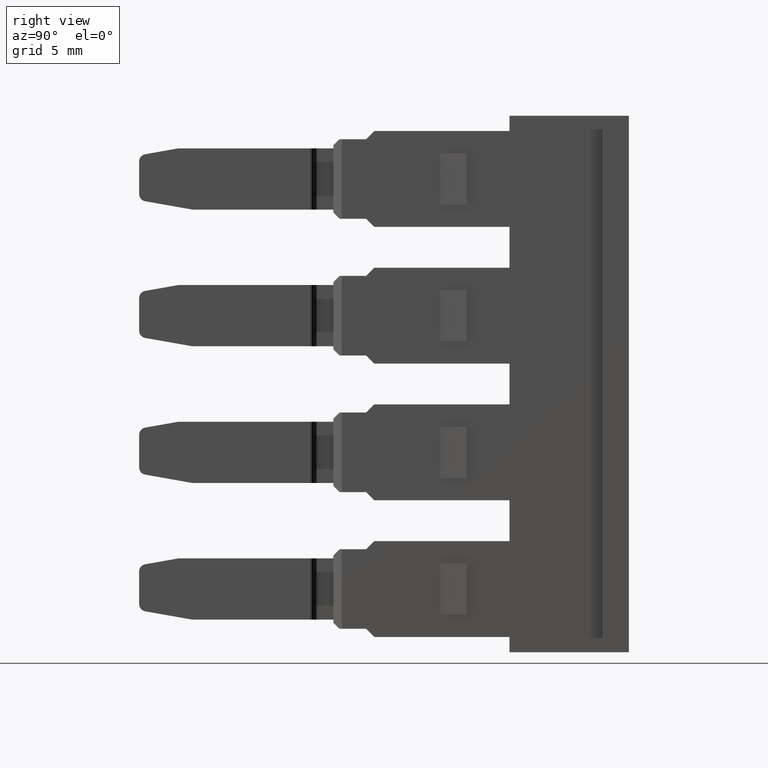
[diagram: clean part render]
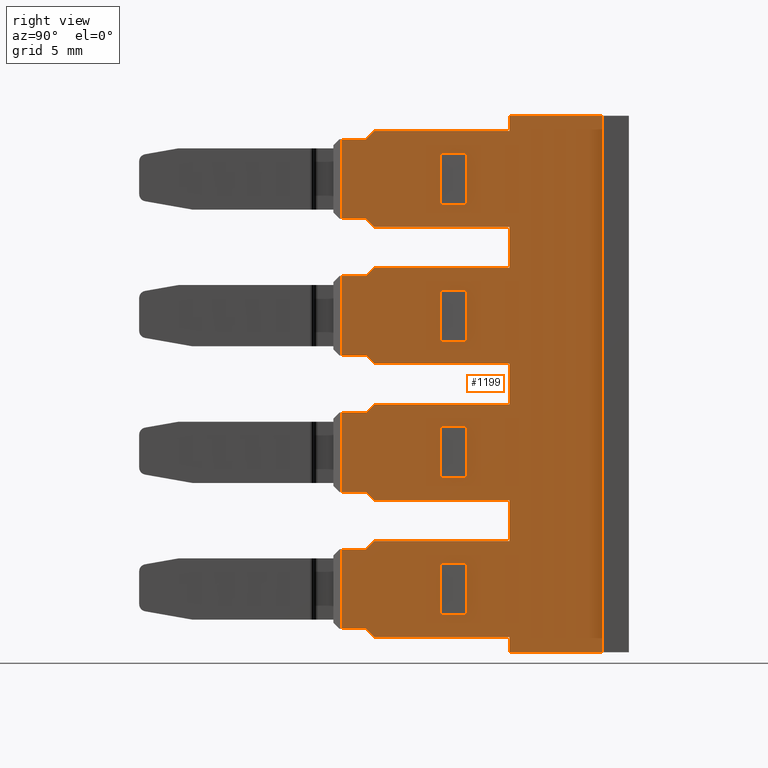
[diagram: same view with one face highlighted and labeled with its STEP entity id]
A machine part, right view. The second image highlights one B-rep face of the part: STEP entity #1199.
In plain terms, the highlighted planar face has unit normal (1, -0, 0).
Its self-contained STEP definition (entity closure, byte-faithful):
#39 = VECTOR ( 'NONE', #3250, 1000.000000000000000 ) ;
#62 = VECTOR ( 'NONE', #2238, 1000.000000000000100 ) ;
#63 = VECTOR ( 'NONE', #2239, 1000.000000000000200 ) ;
#67 = VECTOR ( 'NONE', #2282, 1000.000000000000000 ) ;
#71 = VECTOR ( 'NONE', #2317, 1000.000000000000100 ) ;
#72 = VECTOR ( 'NONE', #2230, 1000.000000000000200 ) ;
#73 = VECTOR ( 'NONE', #2299, 1000.000000000000200 ) ;
#81 = VECTOR ( 'NONE', #2397, 1000.000000000000000 ) ;
#86 = VECTOR ( 'NONE', #2368, 1000.000000000000000 ) ;
#108 = VECTOR ( 'NONE', #2373, 1000.000000000000100 ) ;
#111 = VECTOR ( 'NONE', #2481, 1000.000000000000000 ) ;
#114 = VECTOR ( 'NONE', #2491, 1000.000000000000000 ) ;
#115 = VECTOR ( 'NONE', #2484, 1000.000000000000200 ) ;
#120 = VECTOR ( 'NONE', #2390, 1000.000000000000100 ) ;
#124 = VECTOR ( 'NONE', #2476, 1000.000000000000100 ) ;
#127 = VECTOR ( 'NONE', #2441, 1000.000000000000100 ) ;
#129 = VECTOR ( 'NONE', #2502, 1000.000000000000100 ) ;
#131 = VECTOR ( 'NONE', #2501, 1000.000000000000100 ) ;
#132 = VECTOR ( 'NONE', #2410, 1000.000000000000200 ) ;
#136 = VECTOR ( 'NONE', #2525, 1000.000000000000200 ) ;
#139 = VECTOR ( 'NONE', #2544, 1000.000000000000200 ) ;
#144 = VECTOR ( 'NONE', #2433, 1000.000000000000000 ) ;
#145 = VECTOR ( 'NONE', #2522, 1000.000000000000000 ) ;
#146 = VECTOR ( 'NONE', #2498, 1000.000000000000000 ) ;
#147 = VECTOR ( 'NONE', #2461, 1000.000000000000200 ) ;
#150 = VECTOR ( 'NONE', #2413, 1000.000000000000200 ) ;
#152 = VECTOR ( 'NONE', #2493, 1000.000000000000200 ) ;
#153 = VECTOR ( 'NONE', #2495, 1000.000000000000200 ) ;
#155 = VECTOR ( 'NONE', #2421, 1000.000000000000200 ) ;
#156 = VECTOR ( 'NONE', #2500, 1000.000000000000000 ) ;
#161 = VECTOR ( 'NONE', #2650, 1000.000000000000100 ) ;
#168 = VECTOR ( 'NONE', #2648, 1000.000000000000100 ) ;
#175 = VECTOR ( 'NONE', #2612, 1000.000000000000000 ) ;
#177 = VECTOR ( 'NONE', #2594, 1000.000000000000000 ) ;
#188 = VECTOR ( 'NONE', #2673, 1000.000000000000000 ) ;
#194 = VECTOR ( 'NONE', #2624, 1000.000000000000200 ) ;
#198 = VECTOR ( 'NONE', #2604, 1000.000000000000100 ) ;
#200 = VECTOR ( 'NONE', #2618, 1000.000000000000100 ) ;
#208 = VECTOR ( 'NONE', #2628, 1000.000000000000100 ) ;
#210 = VECTOR ( 'NONE', #2709, 1000.000000000000100 ) ;
#212 = VECTOR ( 'NONE', #2694, 1000.000000000000200 ) ;
#218 = VECTOR ( 'NONE', #2753, 1000.000000000000100 ) ;
#220 = VECTOR ( 'NONE', #2564, 1000.000000000000200 ) ;
#238 = VECTOR ( 'NONE', #2797, 1000.000000000000200 ) ;
#240 = VECTOR ( 'NONE', #2758, 1000.000000000000000 ) ;
#241 = VECTOR ( 'NONE', #2717, 1000.000000000000100 ) ;
#251 = VECTOR ( 'NONE', #2732, 1000.000000000000100 ) ;
#252 = VECTOR ( 'NONE', #2233, 1000.000000000000000 ) ;
#263 = VECTOR ( 'NONE', #2747, 1000.000000000000000 ) ;
#268 = VECTOR ( 'NONE', #2767, 1000.000000000000000 ) ;
#274 = VECTOR ( 'NONE', #2760, 1000.000000000000000 ) ;
#276 = VECTOR ( 'NONE', #2714, 1000.000000000000200 ) ;
#543 = AXIS2_PLACEMENT_3D ( 'NONE', #4434, #4439, #4418 ) ;
#689 = EDGE_CURVE ( 'NONE', #1650, #1649, #3248, .T. ) ;
#713 = EDGE_CURVE ( 'NONE', #1628, #1661, #2257, .T. ) ;
#715 = EDGE_CURVE ( 'NONE', #1680, #1676, #2241, .T. ) ;
#720 = EDGE_CURVE ( 'NONE', #1610, #1668, #2267, .T. ) ;
#734 = EDGE_CURVE ( 'NONE', #1746, #1783, #2285, .T. ) ;
#735 = EDGE_CURVE ( 'NONE', #1692, #1661, #2291, .T. ) ;
#746 = EDGE_CURVE ( 'NONE', #1677, #1617, #2339, .T. ) ;
#754 = EDGE_CURVE ( 'NONE', #1677, #1680, #2400, .T. ) ;
#755 = EDGE_CURVE ( 'NONE', #1610, #1654, #2366, .T. ) ;
#759 = EDGE_CURVE ( 'NONE', #1628, #1668, #2389, .T. ) ;
#765 = EDGE_CURVE ( 'NONE', #1652, #1708, #2362, .T. ) ;
#767 = EDGE_CURVE ( 'NONE', #1692, #1708, #2364, .T. ) ;
#770 = EDGE_CURVE ( 'NONE', #1617, #1676, #2454, .T. ) ;
#774 = EDGE_CURVE ( 'NONE', #1785, #1754, #2392, .T. ) ;
#780 = EDGE_CURVE ( 'NONE', #1732, #1650, #2435, .T. ) ;
#781 = EDGE_CURVE ( 'NONE', #1768, #1784, #2412, .T. ) ;
#783 = EDGE_CURVE ( 'NONE', #1662, #1770, #2427, .T. ) ;
#784 = EDGE_CURVE ( 'NONE', #1740, #1786, #2473, .T. ) ;
#786 = EDGE_CURVE ( 'NONE', #1696, #1710, #2464, .T. ) ;
#787 = EDGE_CURVE ( 'NONE', #1755, #1768, #2428, .T. ) ;
#789 = EDGE_CURVE ( 'NONE', #1696, #1690, #2414, .T. ) ;
#790 = EDGE_CURVE ( 'NONE', #1746, #1725, #2494, .T. ) ;
#791 = EDGE_CURVE ( 'NONE', #1755, #1725, #2482, .T. ) ;
#792 = EDGE_CURVE ( 'NONE', #1698, #1742, #2483, .T. ) ;
#793 = EDGE_CURVE ( 'NONE', #1743, #1649, #2470, .T. ) ;
#796 = EDGE_CURVE ( 'NONE', #1742, #1785, #2488, .T. ) ;
#798 = EDGE_CURVE ( 'NONE', #1652, #1698, #2490, .T. ) ;
#808 = EDGE_CURVE ( 'NONE', #1740, #1767, #2535, .T. ) ;
#809 = EDGE_CURVE ( 'NONE', #1688, #1770, #2514, .T. ) ;
#814 = EDGE_CURVE ( 'NONE', #1784, #1743, #2519, .T. ) ;
#819 = EDGE_CURVE ( 'NONE', #1662, #1690, #2536, .T. ) ;
#821 = EDGE_CURVE ( 'NONE', #1688, #1783, #2558, .T. ) ;
#831 = EDGE_CURVE ( 'NONE', #1786, #1754, #2579, .T. ) ;
#832 = EDGE_CURVE ( 'NONE', #1732, #1767, #2627, .T. ) ;
#837 = EDGE_CURVE ( 'NONE', #1779, #1710, #2607, .T. ) ;
#838 = EDGE_CURVE ( 'NONE', #1724, #1813, #2606, .T. ) ;
#839 = EDGE_CURVE ( 'NONE', #1745, #1765, #2575, .T. ) ;
#850 = EDGE_CURVE ( 'NONE', #1723, #1747, #2641, .T. ) ;
#852 = EDGE_CURVE ( 'NONE', #1745, #1775, #2640, .T. ) ;
#858 = EDGE_CURVE ( 'NONE', #1765, #1749, #2697, .T. ) ;
#864 = EDGE_CURVE ( 'NONE', #1741, #1654, #2707, .T. ) ;
#866 = EDGE_CURVE ( 'NONE', #1744, #1769, #2711, .T. ) ;
#870 = EDGE_CURVE ( 'NONE', #1758, #1764, #2737, .T. ) ;
#871 = EDGE_CURVE ( 'NONE', #1775, #1749, #2678, .T. ) ;
#874 = EDGE_CURVE ( 'NONE', #1741, #1771, #2734, .T. ) ;
#877 = EDGE_CURVE ( 'NONE', #1779, #1769, #2726, .T. ) ;
#878 = EDGE_CURVE ( 'NONE', #1716, #1758, #2740, .T. ) ;
#880 = EDGE_CURVE ( 'NONE', #1716, #1738, #2715, .T. ) ;
#884 = EDGE_CURVE ( 'NONE', #1744, #1771, #2736, .T. ) ;
#885 = EDGE_CURVE ( 'NONE', #1723, #1724, #2793, .T. ) ;
#892 = EDGE_CURVE ( 'NONE', #1738, #1764, #2774, .T. ) ;
#898 = EDGE_CURVE ( 'NONE', #1747, #1813, #2769, .T. ) ;
#1199 = ADVANCED_FACE ( 'NONE', ( #4402, #4410, #4400, #4393, #4427 ), #4403, .T. ) ;
#1514 = ORIENTED_EDGE ( 'NONE', *, *, #808, .F. ) ;
#1515 = ORIENTED_EDGE ( 'NONE', *, *, #814, .T. ) ;
#1516 = ORIENTED_EDGE ( 'NONE', *, *, #791, .F. ) ;
#1539 = ORIENTED_EDGE ( 'NONE', *, *, #781, .T. ) ;
#1547 = ORIENTED_EDGE ( 'NONE', *, *, #798, .F. ) ;
#1551 = ORIENTED_EDGE ( 'NONE', *, *, #792, .F. ) ;
#1558 = ORIENTED_EDGE ( 'NONE', *, *, #689, .F. ) ;
#1563 = ORIENTED_EDGE ( 'NONE', *, *, #789, .T. ) ;
#1566 = ORIENTED_EDGE ( 'NONE', *, *, #793, .T. ) ;
#1567 = ORIENTED_EDGE ( 'NONE', *, *, #734, .F. ) ;
#1572 = ORIENTED_EDGE ( 'NONE', *, *, #765, .T. ) ;
#1573 = ORIENTED_EDGE ( 'NONE', *, *, #767, .F. ) ;
#1578 = ORIENTED_EDGE ( 'NONE', *, *, #735, .T. ) ;
#1582 = ORIENTED_EDGE ( 'NONE', *, *, #784, .T. ) ;
#1584 = ORIENTED_EDGE ( 'NONE', *, *, #796, .F. ) ;
#1585 = ORIENTED_EDGE ( 'NONE', *, *, #786, .F. ) ;
#1586 = ORIENTED_EDGE ( 'NONE', *, *, #774, .F. ) ;
#1587 = ORIENTED_EDGE ( 'NONE', *, *, #832, .T. ) ;
#1590 = ORIENTED_EDGE ( 'NONE', *, *, #790, .T. ) ;
#1591 = ORIENTED_EDGE ( 'NONE', *, *, #713, .F. ) ;
#1593 = ORIENTED_EDGE ( 'NONE', *, *, #780, .F. ) ;
#1598 = ORIENTED_EDGE ( 'NONE', *, *, #821, .T. ) ;
#1600 = ORIENTED_EDGE ( 'NONE', *, *, #831, .T. ) ;
#1602 = ORIENTED_EDGE ( 'NONE', *, *, #809, .F. ) ;
#1607 = ORIENTED_EDGE ( 'NONE', *, *, #819, .F. ) ;
#1610 = VERTEX_POINT ( 'NONE', #4685 ) ;
#1617 = VERTEX_POINT ( 'NONE', #4699 ) ;
#1628 = VERTEX_POINT ( 'NONE', #4682 ) ;
#1649 = VERTEX_POINT ( 'NONE', #4753 ) ;
#1650 = VERTEX_POINT ( 'NONE', #4711 ) ;
#1652 = VERTEX_POINT ( 'NONE', #4707 ) ;
#1654 = VERTEX_POINT ( 'NONE', #4734 ) ;
#1661 = VERTEX_POINT ( 'NONE', #4732 ) ;
#1662 = VERTEX_POINT ( 'NONE', #4767 ) ;
#1668 = VERTEX_POINT ( 'NONE', #4726 ) ;
#1676 = VERTEX_POINT ( 'NONE', #4750 ) ;
#1677 = VERTEX_POINT ( 'NONE', #4769 ) ;
#1680 = VERTEX_POINT ( 'NONE', #4748 ) ;
#1688 = VERTEX_POINT ( 'NONE', #4728 ) ;
#1690 = VERTEX_POINT ( 'NONE', #4752 ) ;
#1692 = VERTEX_POINT ( 'NONE', #4744 ) ;
#1696 = VERTEX_POINT ( 'NONE', #4719 ) ;
#1698 = VERTEX_POINT ( 'NONE', #4731 ) ;
#1708 = VERTEX_POINT ( 'NONE', #4809 ) ;
#1710 = VERTEX_POINT ( 'NONE', #4826 ) ;
#1716 = VERTEX_POINT ( 'NONE', #4770 ) ;
#1723 = VERTEX_POINT ( 'NONE', #4804 ) ;
#1724 = VERTEX_POINT ( 'NONE', #4811 ) ;
#1725 = VERTEX_POINT ( 'NONE', #4771 ) ;
#1732 = VERTEX_POINT ( 'NONE', #4832 ) ;
#1738 = VERTEX_POINT ( 'NONE', #4819 ) ;
#1740 = VERTEX_POINT ( 'NONE', #4785 ) ;
#1741 = VERTEX_POINT ( 'NONE', #4773 ) ;
#1742 = VERTEX_POINT ( 'NONE', #4782 ) ;
#1743 = VERTEX_POINT ( 'NONE', #4806 ) ;
#1744 = VERTEX_POINT ( 'NONE', #4817 ) ;
#1745 = VERTEX_POINT ( 'NONE', #4776 ) ;
#1746 = VERTEX_POINT ( 'NONE', #4821 ) ;
#1747 = VERTEX_POINT ( 'NONE', #4772 ) ;
#1749 = VERTEX_POINT ( 'NONE', #4798 ) ;
#1754 = VERTEX_POINT ( 'NONE', #4797 ) ;
#1755 = VERTEX_POINT ( 'NONE', #4813 ) ;
#1758 = VERTEX_POINT ( 'NONE', #4807 ) ;
#1764 = VERTEX_POINT ( 'NONE', #4783 ) ;
#1765 = VERTEX_POINT ( 'NONE', #4827 ) ;
#1767 = VERTEX_POINT ( 'NONE', #4857 ) ;
#1768 = VERTEX_POINT ( 'NONE', #4851 ) ;
#1769 = VERTEX_POINT ( 'NONE', #4882 ) ;
#1770 = VERTEX_POINT ( 'NONE', #4873 ) ;
#1771 = VERTEX_POINT ( 'NONE', #4836 ) ;
#1775 = VERTEX_POINT ( 'NONE', #4862 ) ;
#1779 = VERTEX_POINT ( 'NONE', #4845 ) ;
#1783 = VERTEX_POINT ( 'NONE', #4834 ) ;
#1784 = VERTEX_POINT ( 'NONE', #4861 ) ;
#1785 = VERTEX_POINT ( 'NONE', #4848 ) ;
#1786 = VERTEX_POINT ( 'NONE', #4887 ) ;
#1813 = VERTEX_POINT ( 'NONE', #4897 ) ;
#1914 = EDGE_LOOP ( 'NONE', ( #2812, #2816, #2856, #2805 ) ) ;
#1925 = EDGE_LOOP ( 'NONE', ( #1585, #1563, #1607, #2850, #1602, #1598, #1567, #1590, #1516, #2814, #1539, #1515, #1566, #1558, #1593, #1587, #1514, #1582, #1600, #1586, #1584, #1551, #1547, #1572, #1573, #1578, #1591, #2859, #2827, #2810, #2824, #2841, #2835, #2855, #2826, #2832 ) ) ;
#1939 = EDGE_LOOP ( 'NONE', ( #2811, #2813, #2853, #2844 ) ) ;
#1961 = EDGE_LOOP ( 'NONE', ( #2804, #2799, #2840, #2822 ) ) ;
#2010 = EDGE_LOOP ( 'NONE', ( #2828, #2829, #2836, #2837 ) ) ;
#2230 = DIRECTION ( 'NONE',  ( -9.483855583750710300E-006, -0.9999999999550282000, -1.120667772762481900E-016 ) ) ;
#2232 = CARTESIAN_POINT ( 'NONE',  ( 1393.382319421650900, 1065.079307296093500, -1.950000000030796700 ) ) ;
#2233 = DIRECTION ( 'NONE',  ( 0.0000000000000000000, 0.0000000000000000000, 1.000000000000000000 ) ) ;
#2238 = DIRECTION ( 'NONE',  ( -9.483855581204527600E-006, -0.9999999999550282000, -0.0000000000000000000 ) ) ;
#2239 = DIRECTION ( 'NONE',  ( -9.483855583750710300E-006, -0.9999999999550282000, 2.389095031153598600E-030 ) ) ;
#2241 = LINE ( 'NONE', #2265, #62 ) ;
#2248 = CARTESIAN_POINT ( 'NONE',  ( 1393.382396617263300, 1073.218993924947400, -2.349999999997611800 ) ) ;
#2257 = LINE ( 'NONE', #2232, #63 ) ;
#2265 = CARTESIAN_POINT ( 'NONE',  ( 1393.382352594128200, 1068.707091196434000, 1.249999999999762600 ) ) ;
#2267 = LINE ( 'NONE', #2248, #72 ) ;
#2282 = DIRECTION ( 'NONE',  ( 1.714438068883926900E-015, -4.605397349032980000E-014, -1.000000000000000000 ) ) ;
#2285 = LINE ( 'NONE', #2288, #73 ) ;
#2288 = CARTESIAN_POINT ( 'NONE',  ( 1393.382319421650900, 1065.079307296089400, -15.35000000003079800 ) ) ;
#2291 = LINE ( 'NONE', #2304, #67 ) ;
#2299 = DIRECTION ( 'NONE',  ( -9.483855583750710300E-006, -0.9999999999550282000, 2.389095031153598600E-030 ) ) ;
#2304 = CARTESIAN_POINT ( 'NONE',  ( 1393.382308020079100, 1063.877098784087400, -50.53084736897763200 ) ) ;
#2317 = DIRECTION ( 'NONE',  ( -9.483855581204527600E-006, -0.9999999999550282000, -0.0000000000000000000 ) ) ;
#2339 = LINE ( 'NONE', #2357, #71 ) ;
#2357 = CARTESIAN_POINT ( 'NONE',  ( 1393.382352594128200, 1068.707091196434000, -1.250000000000237800 ) ) ;
#2362 = LINE ( 'NONE', #2379, #120 ) ;
#2364 = LINE ( 'NONE', #2418, #132 ) ;
#2366 = LINE ( 'NONE', #2375, #86 ) ;
#2368 = DIRECTION ( 'NONE',  ( 1.714874837963338900E-015, -1.626362524897224600E-020, -1.000000000000000000 ) ) ;
#2373 = DIRECTION ( 'NONE',  ( 6.706098596277136100E-006, 0.7071067811548011900, -0.7071067811864939500 ) ) ;
#2375 = CARTESIAN_POINT ( 'NONE',  ( 1393.382384858510700, 1072.109123440697900, -4.149999999864966100 ) ) ;
#2379 = CARTESIAN_POINT ( 'NONE',  ( 1393.382113227151000, 1043.337675100521200, -19.79142368448424000 ) ) ;
#2386 = CARTESIAN_POINT ( 'NONE',  ( 1393.382592454409900, 1093.868522467229200, -30.73942368448381000 ) ) ;
#2389 = LINE ( 'NONE', #2386, #108 ) ;
#2390 = DIRECTION ( 'NONE',  ( -6.706098593851936800E-006, -0.7071067811548011900, -0.7071067811864939500 ) ) ;
#2392 = LINE ( 'NONE', #2439, #127 ) ;
#2397 = DIRECTION ( 'NONE',  ( 0.0000000000000000000, 0.0000000000000000000, 1.000000000000000000 ) ) ;
#2400 = LINE ( 'NONE', #2404, #81 ) ;
#2404 = CARTESIAN_POINT ( 'NONE',  ( 1393.382364923140600, 1070.007091196375300, -1.250000000000237800 ) ) ;
#2410 = DIRECTION ( 'NONE',  ( 9.483855583750710300E-006, 0.9999999999550282000, -2.389095031153598600E-030 ) ) ;
#2411 = CARTESIAN_POINT ( 'NONE',  ( 1393.382396617263300, 1073.348993924947500, 9.050000000002393500 ) ) ;
#2412 = LINE ( 'NONE', #2417, #150 ) ;
#2413 = DIRECTION ( 'NONE',  ( 9.483855583750710300E-006, 0.9999999999550282000, -3.130996347652481000E-030 ) ) ;
#2414 = LINE ( 'NONE', #2467, #114 ) ;
#2417 = CARTESIAN_POINT ( 'NONE',  ( 1393.382438900884600, 1077.807478227273400, -16.49999999994241800 ) ) ;
#2418 = CARTESIAN_POINT ( 'NONE',  ( 1393.382319421650900, 1065.079307296093500, 1.950000000035573300 ) ) ;
#2421 = DIRECTION ( 'NONE',  ( 9.483855583750710300E-006, 0.9999999999550282000, 2.241335545524812400E-016 ) ) ;
#2422 = CARTESIAN_POINT ( 'NONE',  ( 1393.382113227151000, 1043.337675100517100, -33.19142368448423500 ) ) ;
#2427 = LINE ( 'NONE', #2422, #131 ) ;
#2428 = LINE ( 'NONE', #2497, #111 ) ;
#2431 = CARTESIAN_POINT ( 'NONE',  ( 1393.382352594128200, 1068.707091196434000, -1.250000000000237800 ) ) ;
#2433 = DIRECTION ( 'NONE',  ( 0.0000000000000000000, 0.0000000000000000000, 1.000000000000000000 ) ) ;
#2435 = LINE ( 'NONE', #2411, #155 ) ;
#2439 = CARTESIAN_POINT ( 'NONE',  ( 1393.382319419673200, 1065.079098784066700, 4.749999999969200600 ) ) ;
#2441 = DIRECTION ( 'NONE',  ( -6.706098596277136100E-006, -0.7071067811548011900, 0.7071067811864939500 ) ) ;
#2454 = LINE ( 'NONE', #2431, #144 ) ;
#2455 = CARTESIAN_POINT ( 'NONE',  ( 1393.382396617263300, 1073.348993924947500, 4.350000000002388800 ) ) ;
#2458 = CARTESIAN_POINT ( 'NONE',  ( 1393.382384858510700, 1072.109123440683800, 9.800000000002386400 ) ) ;
#2460 = CARTESIAN_POINT ( 'NONE',  ( 1393.382396617263300, 1073.218993924947400, 2.350000000002388800 ) ) ;
#2461 = DIRECTION ( 'NONE',  ( 9.483855583750710300E-006, 0.9999999999550282000, 2.241335545524812400E-016 ) ) ;
#2464 = LINE ( 'NONE', #2469, #152 ) ;
#2467 = CARTESIAN_POINT ( 'NONE',  ( 1393.382384858510700, 1072.109123440695600, -10.84999999986496800 ) ) ;
#2468 = CARTESIAN_POINT ( 'NONE',  ( 1393.382308020079100, 1063.877098784086900, -50.53084736897763200 ) ) ;
#2469 = CARTESIAN_POINT ( 'NONE',  ( 1393.382396617263300, 1073.218993924945200, -9.049999999997611500 ) ) ;
#2470 = LINE ( 'NONE', #2458, #124 ) ;
#2473 = LINE ( 'NONE', #2468, #156 ) ;
#2474 = CARTESIAN_POINT ( 'NONE',  ( 1393.382592454409900, 1093.868522467225100, -44.13942368448381600 ) ) ;
#2475 = CARTESIAN_POINT ( 'NONE',  ( 1393.382396617263300, 1073.218993924943300, -15.74999999999761300 ) ) ;
#2476 = DIRECTION ( 'NONE',  ( -9.483855611108565000E-006, -0.9999999999550282000, -5.225314860975799700E-029 ) ) ;
#2481 = DIRECTION ( 'NONE',  ( 1.714874837963338900E-015, -1.626362524897224600E-020, -1.000000000000000000 ) ) ;
#2482 = LINE ( 'NONE', #2475, #115 ) ;
#2483 = LINE ( 'NONE', #2485, #146 ) ;
#2484 = DIRECTION ( 'NONE',  ( -9.483855583750710300E-006, -0.9999999999550282000, -1.120667772762481900E-016 ) ) ;
#2485 = CARTESIAN_POINT ( 'NONE',  ( 1393.382384858510700, 1072.109123440686300, 5.351675905081232400 ) ) ;
#2488 = LINE ( 'NONE', #2455, #153 ) ;
#2490 = LINE ( 'NONE', #2460, #147 ) ;
#2491 = DIRECTION ( 'NONE',  ( 1.714874837963338900E-015, -1.626362524897224600E-020, -1.000000000000000000 ) ) ;
#2493 = DIRECTION ( 'NONE',  ( -9.483855583750710300E-006, -0.9999999999550282000, -1.120667772762481900E-016 ) ) ;
#2494 = LINE ( 'NONE', #2474, #129 ) ;
#2495 = DIRECTION ( 'NONE',  ( -9.483855583750710300E-006, -0.9999999999550282000, -1.120667772762481900E-016 ) ) ;
#2497 = CARTESIAN_POINT ( 'NONE',  ( 1393.382384858510700, 1072.109123440693600, -17.54999999986496600 ) ) ;
#2498 = DIRECTION ( 'NONE',  ( -1.714375413515915900E-015, 5.266050260173267100E-014, 1.000000000000000000 ) ) ;
#2500 = DIRECTION ( 'NONE',  ( 1.714438068883926900E-015, -4.605397349032980000E-014, -1.000000000000000000 ) ) ;
#2501 = DIRECTION ( 'NONE',  ( -6.706098593851936800E-006, -0.7071067811548011900, -0.7071067811864939500 ) ) ;
#2502 = DIRECTION ( 'NONE',  ( 6.706098596277136100E-006, 0.7071067811548011900, -0.7071067811864939500 ) ) ;
#2514 = LINE ( 'NONE', #2532, #139 ) ;
#2519 = LINE ( 'NONE', #2521, #145 ) ;
#2521 = CARTESIAN_POINT ( 'NONE',  ( 1393.382427990852200, 1076.657098783514800, -50.53084736897823600 ) ) ;
#2522 = DIRECTION ( 'NONE',  ( -1.714375413516005400E-015, 5.266050259226226300E-014, 1.000000000000000000 ) ) ;
#2525 = DIRECTION ( 'NONE',  ( 9.483855583750710300E-006, 0.9999999999550282000, -2.389095031153598600E-030 ) ) ;
#2532 = CARTESIAN_POINT ( 'NONE',  ( 1393.382319421650900, 1065.079307296089400, -11.44999999996442800 ) ) ;
#2535 = LINE ( 'NONE', #2541, #136 ) ;
#2536 = LINE ( 'NONE', #2586, #220 ) ;
#2541 = CARTESIAN_POINT ( 'NONE',  ( 1393.382319421650900, 1065.079307296093500, 8.650000000035571900 ) ) ;
#2544 = DIRECTION ( 'NONE',  ( 9.483855583750710300E-006, 0.9999999999550282000, -2.389095031153598600E-030 ) ) ;
#2558 = LINE ( 'NONE', #2592, #177 ) ;
#2561 = CARTESIAN_POINT ( 'NONE',  ( 1393.382404755406000, 1074.077098783628100, 4.749999999969209500 ) ) ;
#2564 = DIRECTION ( 'NONE',  ( 9.483855583750710300E-006, 0.9999999999550282000, 2.241335545524812400E-016 ) ) ;
#2575 = LINE ( 'NONE', #2609, #175 ) ;
#2579 = LINE ( 'NONE', #2561, #194 ) ;
#2586 = CARTESIAN_POINT ( 'NONE',  ( 1393.382396617263300, 1073.218993924943300, -11.04999999999761200 ) ) ;
#2592 = CARTESIAN_POINT ( 'NONE',  ( 1393.382308020079100, 1063.877098784083000, -63.93084736897762400 ) ) ;
#2594 = DIRECTION ( 'NONE',  ( 1.714438068883926900E-015, -4.605397349032980000E-014, -1.000000000000000000 ) ) ;
#2600 = CARTESIAN_POINT ( 'NONE',  ( 1393.382081456234800, 1039.987675100672000, -16.44142368448373800 ) ) ;
#2603 = CARTESIAN_POINT ( 'NONE',  ( 1393.382592454409900, 1093.868522467227200, -37.43942368448380600 ) ) ;
#2604 = DIRECTION ( 'NONE',  ( -6.706098593851936800E-006, -0.7071067811548011900, -0.7071067811864939500 ) ) ;
#2606 = LINE ( 'NONE', #2620, #208 ) ;
#2607 = LINE ( 'NONE', #2603, #200 ) ;
#2609 = CARTESIAN_POINT ( 'NONE',  ( 1393.382364923140600, 1070.007091196375300, 5.449999999999762100 ) ) ;
#2612 = DIRECTION ( 'NONE',  ( 0.0000000000000000000, 0.0000000000000000000, 1.000000000000000000 ) ) ;
#2618 = DIRECTION ( 'NONE',  ( 6.706098596277136100E-006, 0.7071067811548011900, -0.7071067811864939500 ) ) ;
#2620 = CARTESIAN_POINT ( 'NONE',  ( 1393.382352594128200, 1068.707091196429700, -12.15000000000023700 ) ) ;
#2624 = DIRECTION ( 'NONE',  ( 9.483855583750710300E-006, 0.9999999999550282000, -2.389095031153598600E-030 ) ) ;
#2627 = LINE ( 'NONE', #2600, #198 ) ;
#2628 = DIRECTION ( 'NONE',  ( -9.483855581204527600E-006, -0.9999999999550282000, -0.0000000000000000000 ) ) ;
#2640 = LINE ( 'NONE', #2666, #168 ) ;
#2641 = LINE ( 'NONE', #2653, #161 ) ;
#2648 = DIRECTION ( 'NONE',  ( -9.483855581204527600E-006, -0.9999999999550282000, -0.0000000000000000000 ) ) ;
#2650 = DIRECTION ( 'NONE',  ( -9.483855581204527600E-006, -0.9999999999550282000, -0.0000000000000000000 ) ) ;
#2653 = CARTESIAN_POINT ( 'NONE',  ( 1393.382352594128200, 1068.707091196429700, -14.65000000000023800 ) ) ;
#2666 = CARTESIAN_POINT ( 'NONE',  ( 1393.382352594128200, 1068.707091196434000, 5.449999999999762100 ) ) ;
#2670 = CARTESIAN_POINT ( 'NONE',  ( 1393.382308020079100, 1063.877098784085100, -57.23084736897762800 ) ) ;
#2673 = DIRECTION ( 'NONE',  ( 1.714438068883926900E-015, -4.605397349032980000E-014, -1.000000000000000000 ) ) ;
#2678 = LINE ( 'NONE', #2713, #263 ) ;
#2693 = CARTESIAN_POINT ( 'NONE',  ( 1393.382396617263300, 1073.218993924945200, -4.349999999997611300 ) ) ;
#2694 = DIRECTION ( 'NONE',  ( 9.483855583750710300E-006, 0.9999999999550282000, 2.241335545524812400E-016 ) ) ;
#2697 = LINE ( 'NONE', #2699, #210 ) ;
#2699 = CARTESIAN_POINT ( 'NONE',  ( 1393.382352594128200, 1068.707091196434000, 7.949999999999763000 ) ) ;
#2707 = LINE ( 'NONE', #2693, #212 ) ;
#2709 = DIRECTION ( 'NONE',  ( -9.483855581204527600E-006, -0.9999999999550282000, -0.0000000000000000000 ) ) ;
#2711 = LINE ( 'NONE', #2670, #188 ) ;
#2713 = CARTESIAN_POINT ( 'NONE',  ( 1393.382352594128200, 1068.707091196434000, 5.449999999999762100 ) ) ;
#2714 = DIRECTION ( 'NONE',  ( -9.483855583750710300E-006, -0.9999999999550282000, 2.389095031153598600E-030 ) ) ;
#2715 = LINE ( 'NONE', #2729, #241 ) ;
#2716 = CARTESIAN_POINT ( 'NONE',  ( 1393.382113227151000, 1043.337675100518900, -26.49142368448423900 ) ) ;
#2717 = DIRECTION ( 'NONE',  ( -9.483855581204527600E-006, -0.9999999999550282000, -0.0000000000000000000 ) ) ;
#2723 = CARTESIAN_POINT ( 'NONE',  ( 1393.382364923140600, 1070.007091196373000, -7.950000000000238200 ) ) ;
#2726 = LINE ( 'NONE', #2748, #276 ) ;
#2729 = CARTESIAN_POINT ( 'NONE',  ( 1393.382352594128200, 1068.707091196431700, -7.950000000000238200 ) ) ;
#2732 = DIRECTION ( 'NONE',  ( -6.706098593851936800E-006, -0.7071067811548011900, -0.7071067811864939500 ) ) ;
#2734 = LINE ( 'NONE', #2716, #251 ) ;
#2736 = LINE ( 'NONE', #2741, #238 ) ;
#2737 = LINE ( 'NONE', #2744, #218 ) ;
#2740 = LINE ( 'NONE', #2723, #240 ) ;
#2741 = CARTESIAN_POINT ( 'NONE',  ( 1393.382319421650900, 1065.079307296091400, -4.749999999964426700 ) ) ;
#2744 = CARTESIAN_POINT ( 'NONE',  ( 1393.382352594128200, 1068.707091196431700, -5.450000000000237300 ) ) ;
#2747 = DIRECTION ( 'NONE',  ( 0.0000000000000000000, 0.0000000000000000000, 1.000000000000000000 ) ) ;
#2748 = CARTESIAN_POINT ( 'NONE',  ( 1393.382319421650900, 1065.079307296091400, -8.650000000030797100 ) ) ;
#2753 = DIRECTION ( 'NONE',  ( -9.483855581204527600E-006, -0.9999999999550282000, -0.0000000000000000000 ) ) ;
#2758 = DIRECTION ( 'NONE',  ( 0.0000000000000000000, 0.0000000000000000000, 1.000000000000000000 ) ) ;
#2760 = DIRECTION ( 'NONE',  ( 0.0000000000000000000, 0.0000000000000000000, 1.000000000000000000 ) ) ;
#2763 = CARTESIAN_POINT ( 'NONE',  ( 1393.382352594128200, 1068.707091196431700, -7.950000000000238200 ) ) ;
#2767 = DIRECTION ( 'NONE',  ( 0.0000000000000000000, 0.0000000000000000000, 1.000000000000000000 ) ) ;
#2769 = LINE ( 'NONE', #3185, #252 ) ;
#2774 = LINE ( 'NONE', #2763, #268 ) ;
#2792 = CARTESIAN_POINT ( 'NONE',  ( 1393.382364923140600, 1070.007091196371000, -14.65000000000023800 ) ) ;
#2793 = LINE ( 'NONE', #2792, #274 ) ;
#2797 = DIRECTION ( 'NONE',  ( 9.483855583750710300E-006, 0.9999999999550282000, -2.389095031153598600E-030 ) ) ;
#2799 = ORIENTED_EDGE ( 'NONE', *, *, #892, .T. ) ;
#2804 = ORIENTED_EDGE ( 'NONE', *, *, #880, .T. ) ;
#2805 = ORIENTED_EDGE ( 'NONE', *, *, #839, .F. ) ;
#2810 = ORIENTED_EDGE ( 'NONE', *, *, #755, .T. ) ;
#2811 = ORIENTED_EDGE ( 'NONE', *, *, #746, .T. ) ;
#2812 = ORIENTED_EDGE ( 'NONE', *, *, #852, .T. ) ;
#2813 = ORIENTED_EDGE ( 'NONE', *, *, #770, .T. ) ;
#2814 = ORIENTED_EDGE ( 'NONE', *, *, #787, .T. ) ;
#2816 = ORIENTED_EDGE ( 'NONE', *, *, #871, .T. ) ;
#2822 = ORIENTED_EDGE ( 'NONE', *, *, #878, .F. ) ;
#2824 = ORIENTED_EDGE ( 'NONE', *, *, #864, .F. ) ;
#2826 = ORIENTED_EDGE ( 'NONE', *, *, #877, .F. ) ;
#2827 = ORIENTED_EDGE ( 'NONE', *, *, #720, .F. ) ;
#2828 = ORIENTED_EDGE ( 'NONE', *, *, #850, .T. ) ;
#2829 = ORIENTED_EDGE ( 'NONE', *, *, #898, .T. ) ;
#2832 = ORIENTED_EDGE ( 'NONE', *, *, #837, .T. ) ;
#2835 = ORIENTED_EDGE ( 'NONE', *, *, #884, .F. ) ;
#2836 = ORIENTED_EDGE ( 'NONE', *, *, #838, .F. ) ;
#2837 = ORIENTED_EDGE ( 'NONE', *, *, #885, .F. ) ;
#2840 = ORIENTED_EDGE ( 'NONE', *, *, #870, .F. ) ;
#2841 = ORIENTED_EDGE ( 'NONE', *, *, #874, .T. ) ;
#2844 = ORIENTED_EDGE ( 'NONE', *, *, #754, .F. ) ;
#2850 = ORIENTED_EDGE ( 'NONE', *, *, #783, .T. ) ;
#2853 = ORIENTED_EDGE ( 'NONE', *, *, #715, .F. ) ;
#2855 = ORIENTED_EDGE ( 'NONE', *, *, #866, .T. ) ;
#2856 = ORIENTED_EDGE ( 'NONE', *, *, #858, .F. ) ;
#2859 = ORIENTED_EDGE ( 'NONE', *, *, #759, .T. ) ;
#3185 = CARTESIAN_POINT ( 'NONE',  ( 1393.382352594128200, 1068.707091196429700, -14.65000000000023800 ) ) ;
#3238 = CARTESIAN_POINT ( 'NONE',  ( 1393.382384858510700, 1072.109123440686300, 5.351675905081232400 ) ) ;
#3248 = LINE ( 'NONE', #3238, #39 ) ;
#3250 = DIRECTION ( 'NONE',  ( -1.714375413515915900E-015, 5.266050260173267100E-014, 1.000000000000000000 ) ) ;
#4393 = FACE_BOUND ( 'NONE', #1914, .T. ) ;
#4400 = FACE_BOUND ( 'NONE', #1939, .T. ) ;
#4402 = FACE_OUTER_BOUND ( 'NONE', #1925, .T. ) ;
#4403 = PLANE ( 'NONE',  #543 ) ;
#4410 = FACE_BOUND ( 'NONE', #1961, .T. ) ;
#4418 = DIRECTION ( 'NONE',  ( 9.483855583750710300E-006, 0.9999999999550282000, 0.0000000000000000000 ) ) ;
#4427 = FACE_BOUND ( 'NONE', #2010, .T. ) ;
#4434 = CARTESIAN_POINT ( 'NONE',  ( 1393.382404755406000, 1074.077098783628100, -50.53084736897810100 ) ) ;
#4439 = DIRECTION ( 'NONE',  ( 0.9999999999550283100, -9.483855583750712000E-006, 1.714874838040459600E-015 ) ) ;
#4682 = CARTESIAN_POINT ( 'NONE',  ( 1393.382319419673200, 1065.079098784066700, -1.950000000030728900 ) ) ;
#4685 = CARTESIAN_POINT ( 'NONE',  ( 1393.382384858510700, 1072.109123440697900, -2.349999999997612200 ) ) ;
#4699 = CARTESIAN_POINT ( 'NONE',  ( 1393.382352594128200, 1068.707091196434000, -1.250000000000237800 ) ) ;
#4707 = CARTESIAN_POINT ( 'NONE',  ( 1393.382323213215600, 1065.479098784015200, 2.350000000002386600 ) ) ;
#4711 = CARTESIAN_POINT ( 'NONE',  ( 1393.382384858510700, 1072.109123440686500, 9.050000000002391700 ) ) ;
#4719 = CARTESIAN_POINT ( 'NONE',  ( 1393.382384858510700, 1072.109123440695600, -9.049999999997611500 ) ) ;
#4726 = CARTESIAN_POINT ( 'NONE',  ( 1393.382323213215600, 1065.479098784014900, -2.349999999997613100 ) ) ;
#4728 = CARTESIAN_POINT ( 'NONE',  ( 1393.382308020078900, 1063.877098784085300, -11.44999999996441400 ) ) ;
#4731 = CARTESIAN_POINT ( 'NONE',  ( 1393.382384858510700, 1072.109123440686100, 2.350000000002352000 ) ) ;
#4732 = CARTESIAN_POINT ( 'NONE',  ( 1393.382308020078900, 1063.877098784089600, -1.950000000030507100 ) ) ;
#4734 = CARTESIAN_POINT ( 'NONE',  ( 1393.382384858510700, 1072.109123440683800, -4.349999999997648600 ) ) ;
#4744 = CARTESIAN_POINT ( 'NONE',  ( 1393.382308020078900, 1063.877098784089600, 1.950000000035586400 ) ) ;
#4748 = CARTESIAN_POINT ( 'NONE',  ( 1393.382364923140600, 1070.007091196375300, 1.249999999999765100 ) ) ;
#4750 = CARTESIAN_POINT ( 'NONE',  ( 1393.382352594128200, 1068.707091196434000, 1.249999999999762600 ) ) ;
#4752 = CARTESIAN_POINT ( 'NONE',  ( 1393.382384858510700, 1072.109123440682000, -11.04999999999764900 ) ) ;
#4753 = CARTESIAN_POINT ( 'NONE',  ( 1393.382384858510700, 1072.109123440683800, 9.800000000002386400 ) ) ;
#4767 = CARTESIAN_POINT ( 'NONE',  ( 1393.382323213215600, 1065.479098784011100, -11.04999999999761300 ) ) ;
#4769 = CARTESIAN_POINT ( 'NONE',  ( 1393.382364923140600, 1070.007091196375300, -1.250000000000237800 ) ) ;
#4770 = CARTESIAN_POINT ( 'NONE',  ( 1393.382364923140600, 1070.007091196373000, -7.950000000000238200 ) ) ;
#4771 = CARTESIAN_POINT ( 'NONE',  ( 1393.382323213215600, 1065.479098784010800, -15.74999999999761300 ) ) ;
#4772 = CARTESIAN_POINT ( 'NONE',  ( 1393.382352594128200, 1068.707091196429700, -14.65000000000023800 ) ) ;
#4773 = CARTESIAN_POINT ( 'NONE',  ( 1393.382323213215600, 1065.479098784013100, -4.349999999997614000 ) ) ;
#4776 = CARTESIAN_POINT ( 'NONE',  ( 1393.382364923140600, 1070.007091196375300, 5.449999999999762100 ) ) ;
#4782 = CARTESIAN_POINT ( 'NONE',  ( 1393.382384858510900, 1072.109123472137800, 4.350000000002388800 ) ) ;
#4783 = CARTESIAN_POINT ( 'NONE',  ( 1393.382352594128200, 1068.707091196431700, -5.450000000000237300 ) ) ;
#4785 = CARTESIAN_POINT ( 'NONE',  ( 1393.382308020078900, 1063.877098784089600, 8.650000000035584300 ) ) ;
#4797 = CARTESIAN_POINT ( 'NONE',  ( 1393.382319419673200, 1065.079098784066700, 4.749999999969273500 ) ) ;
#4798 = CARTESIAN_POINT ( 'NONE',  ( 1393.382352594128200, 1068.707091196434000, 7.949999999999763000 ) ) ;
#4804 = CARTESIAN_POINT ( 'NONE',  ( 1393.382364923140600, 1070.007091196371000, -14.65000000000023800 ) ) ;
#4806 = CARTESIAN_POINT ( 'NONE',  ( 1393.382427990852200, 1076.657098783515500, 9.800000000002386400 ) ) ;
#4807 = CARTESIAN_POINT ( 'NONE',  ( 1393.382364923140600, 1070.007091196373000, -5.450000000000234700 ) ) ;
#4809 = CARTESIAN_POINT ( 'NONE',  ( 1393.382319419673200, 1065.079098784066700, 1.950000000035512200 ) ) ;
#4811 = CARTESIAN_POINT ( 'NONE',  ( 1393.382364923140600, 1070.007091196371000, -12.15000000000023500 ) ) ;
#4813 = CARTESIAN_POINT ( 'NONE',  ( 1393.382384858510700, 1072.109123440693600, -15.74999999999761300 ) ) ;
#4817 = CARTESIAN_POINT ( 'NONE',  ( 1393.382308020078900, 1063.877098784087400, -4.749999999964413400 ) ) ;
#4819 = CARTESIAN_POINT ( 'NONE',  ( 1393.382352594128200, 1068.707091196431700, -7.950000000000238200 ) ) ;
#4821 = CARTESIAN_POINT ( 'NONE',  ( 1393.382319419673200, 1065.079098784062400, -15.35000000003072900 ) ) ;
#4826 = CARTESIAN_POINT ( 'NONE',  ( 1393.382323213215600, 1065.479098784012900, -9.049999999997613300 ) ) ;
#4827 = CARTESIAN_POINT ( 'NONE',  ( 1393.382364923140600, 1070.007091196375300, 7.949999999999763000 ) ) ;
#4832 = CARTESIAN_POINT ( 'NONE',  ( 1393.382323213215600, 1065.479098784015200, 9.050000000002391700 ) ) ;
#4834 = CARTESIAN_POINT ( 'NONE',  ( 1393.382308020078900, 1063.877098784085300, -15.35000000003050700 ) ) ;
#4836 = CARTESIAN_POINT ( 'NONE',  ( 1393.382319419673200, 1065.079098784064400, -4.749999999964487100 ) ) ;
#4845 = CARTESIAN_POINT ( 'NONE',  ( 1393.382319419673200, 1065.079098784064400, -8.650000000030727800 ) ) ;
#4848 = CARTESIAN_POINT ( 'NONE',  ( 1393.382323213215600, 1065.479098784014900, 4.350000000002388000 ) ) ;
#4851 = CARTESIAN_POINT ( 'NONE',  ( 1393.382384858510700, 1072.109123440693600, -16.49999999994241800 ) ) ;
#4857 = CARTESIAN_POINT ( 'NONE',  ( 1393.382319419673200, 1065.079098784066700, 8.650000000035509700 ) ) ;
#4861 = CARTESIAN_POINT ( 'NONE',  ( 1393.382427990852000, 1076.657098783513200, -16.49999999994241800 ) ) ;
#4862 = CARTESIAN_POINT ( 'NONE',  ( 1393.382352594128200, 1068.707091196434000, 5.449999999999762100 ) ) ;
#4873 = CARTESIAN_POINT ( 'NONE',  ( 1393.382319419673200, 1065.079098784062400, -11.44999999996448800 ) ) ;
#4882 = CARTESIAN_POINT ( 'NONE',  ( 1393.382308020078900, 1063.877098784087400, -8.650000000030507500 ) ) ;
#4887 = CARTESIAN_POINT ( 'NONE',  ( 1393.382308020078900, 1063.877098784089600, 4.749999999969497300 ) ) ;
#4897 = CARTESIAN_POINT ( 'NONE',  ( 1393.382352594128200, 1068.707091196429700, -12.15000000000023700 ) ) ;